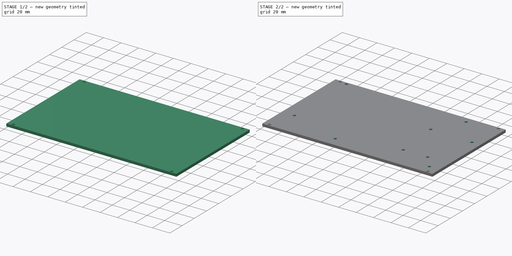
[diagram: build sequence overview — one tinted view per stage of 2, left to right]
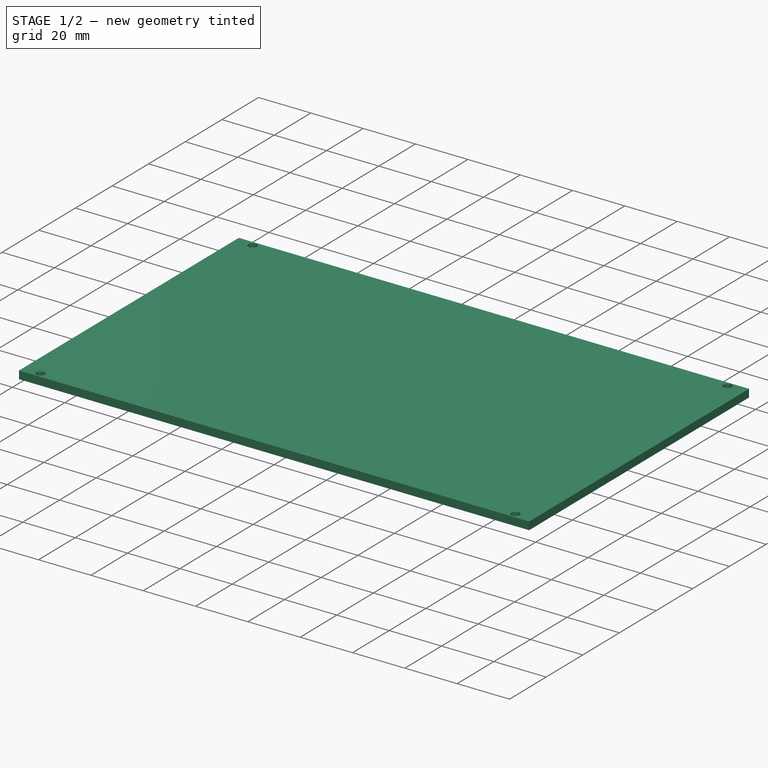
[diagram: stage 1 of 2 — iso view after this stage's code; geometry added in this stage tinted green]
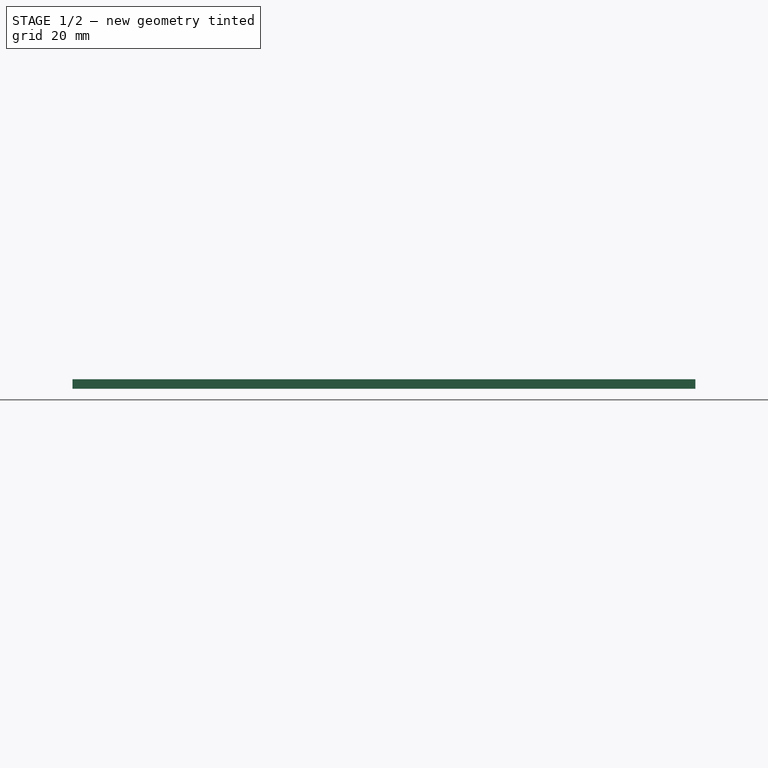
[diagram: stage 1 of 2 — front view after this stage's code; geometry added in this stage tinted green]
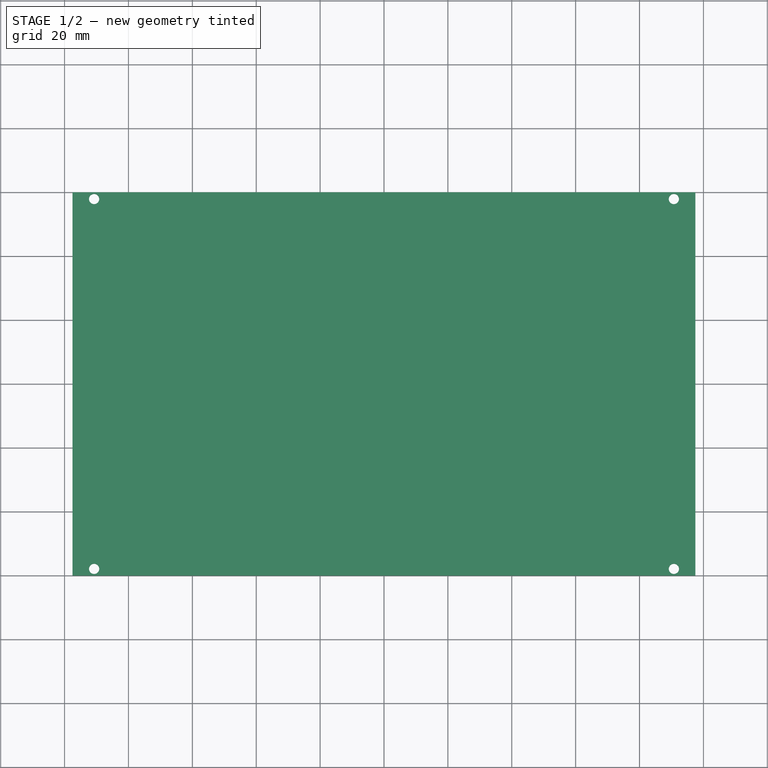
[diagram: stage 1 of 2 — top view after this stage's code; geometry added in this stage tinted green]
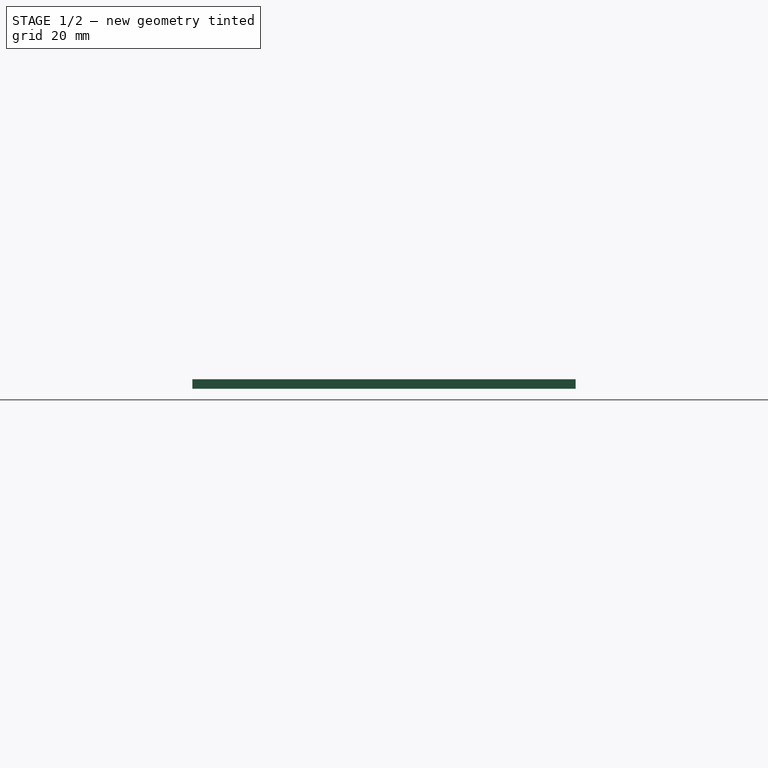
[diagram: stage 1 of 2 — right view after this stage's code; geometry added in this stage tinted green]
FCSTD DOCUMENT
Label: controls-mounting-plate
objects: Sketcher::SketchObject×3, PartDesign::Pocket×2, PartDesign::Pad×1
note: 9 computed .brp shape members not serialized (recipe doc carries the construction recipe); baked Part::Feature solids carry a one-line shape summary decoded from their .brp

FEATURE [Sketcher::SketchObject] Sketch
  sketch-geometry (4):
    g0: LineSegment StartX=-97.5 StartY=60 StartZ=0 EndX=97.5 EndY=60 EndZ=0
    g1: LineSegment StartX=97.5 StartY=60 StartZ=0 EndX=97.5 EndY=-60 EndZ=0
    g2: LineSegment StartX=97.5 StartY=-60 StartZ=0 EndX=-97.5 EndY=-60 EndZ=0
    g3: LineSegment StartX=-97.5 StartY=-60 StartZ=0 EndX=-97.5 EndY=60 EndZ=0
  constraints (12):
    c: Coincident(g0,g1)
    c: Coincident(g1,g2)
    c: Coincident(g2,g3)
    c: Coincident(g3,g0)
    c: Horizontal(g0)
    c: Horizontal(g2)
    c: Vertical(g1)
    c: Vertical(g3)
    c: Symmetric(g0,g2,g-1)
    c: Symmetric(g0,g0,g-2)
    c: DistanceX(g0) = 195
    c: DistanceY(g1) = -120
FEATURE [PartDesign::Pad] Pad
  Length = 3
  Length2 = 100
  Sketch = -> Sketch
  Type = 0
FEATURE [Sketcher::SketchObject] Sketch001
  Placement = pos=(0,0,3) rot=(0,0,1;0rad)
  Support = -> Pad [Face6]
  sketch-geometry (4):
    g0: Circle CenterX=-90.75 CenterY=57.9 CenterZ=0 NormalX=0 NormalY=0 NormalZ=1 Radius=1.6
    g1: Circle CenterX=90.75 CenterY=57.9 CenterZ=0 NormalX=0 NormalY=0 NormalZ=1 Radius=1.6
    g2: Circle CenterX=-90.75 CenterY=-57.9 CenterZ=0 NormalX=0 NormalY=0 NormalZ=1 Radius=1.6
    g3: Circle CenterX=90.75 CenterY=-57.9 CenterZ=0 NormalX=0 NormalY=0 NormalZ=1 Radius=1.6
  constraints (9):
    c: Equal(g0,g2)
    c: Equal(g2,g3)
    c: Equal(g3,g1)
    c: Radius(g1) = 1.6
    c: Symmetric(g0,g1,g-2)
    c: Symmetric(g0,g2,g-1)
    c: Symmetric(g3,g1,g-1)
    c: DistanceX(g0,g1) = 181.5
    c: DistanceY(g0,g2) = -115.8
FEATURE [PartDesign::Pocket] Pocket
  Length = 5
  Sketch = -> Sketch001
  Type = 0
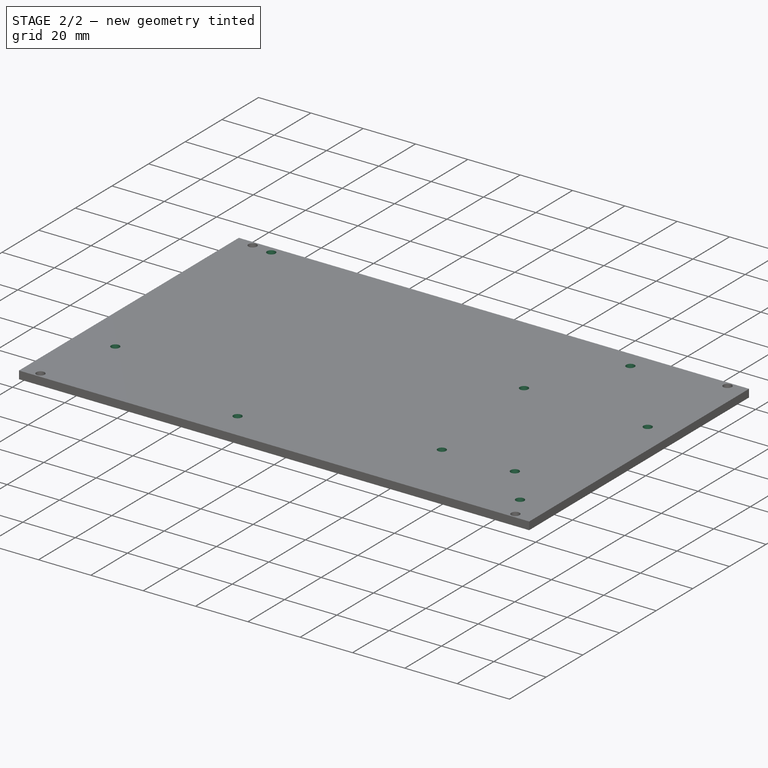
[diagram: stage 2 of 2 — iso view after this stage's code; geometry added in this stage tinted green]
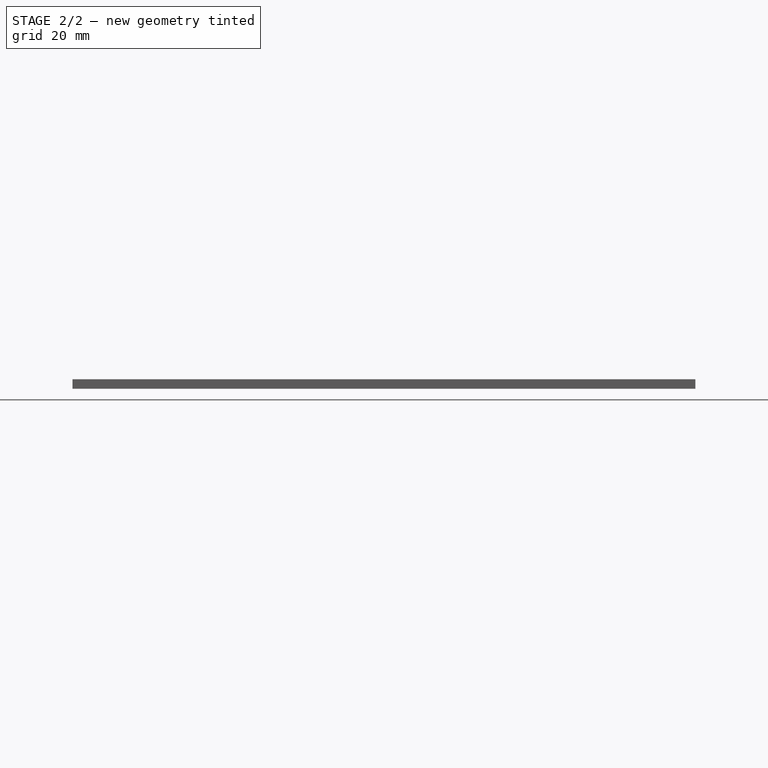
[diagram: stage 2 of 2 — front view after this stage's code; geometry added in this stage tinted green]
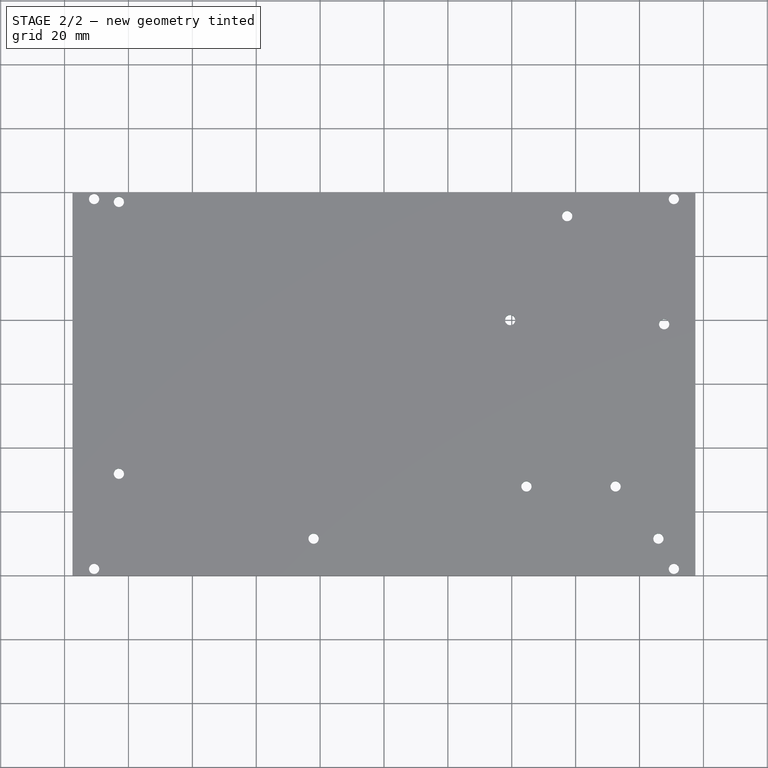
[diagram: stage 2 of 2 — top view after this stage's code; geometry added in this stage tinted green]
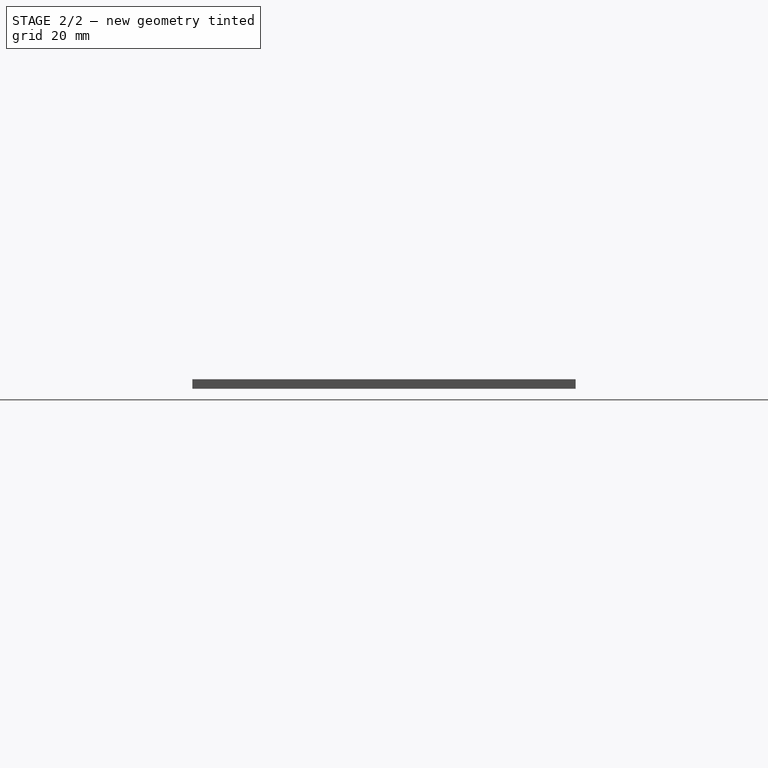
[diagram: stage 2 of 2 — right view after this stage's code; geometry added in this stage tinted green]
FEATURE [Sketcher::SketchObject] Sketch002
  Placement = pos=(0,0,3) rot=(0,0,1;0rad)
  Support = -> Pocket [Face5]
  sketch-geometry (10):
    g0: Circle CenterX=-83 CenterY=57 CenterZ=0 NormalX=0 NormalY=0 NormalZ=1 Radius=1.6
    g1: Circle CenterX=57.355 CenterY=52.555 CenterZ=0 NormalX=0 NormalY=0 NormalZ=1 Radius=1.6
    g2: Circle CenterX=-83 CenterY=-28.123 CenterZ=0 NormalX=0 NormalY=0 NormalZ=1 Radius=1.6
    g3: Circle CenterX=-22.04 CenterY=-48.443 CenterZ=0 NormalX=0 NormalY=0 NormalZ=1 Radius=1.6
    g4: Circle CenterX=85.91 CenterY=-48.443 CenterZ=0 NormalX=0 NormalY=0 NormalZ=1 Radius=1.6
    g5: LineSegment [constr] StartX=37 StartY=50 StartZ=0 EndX=37 EndY=-50 EndZ=0
    g6: Circle CenterX=39.5 CenterY=20 CenterZ=0 NormalX=0 NormalY=0 NormalZ=1 Radius=1.6
    g7: Circle CenterX=44.6 CenterY=-32.1 CenterZ=0 NormalX=0 NormalY=0 NormalZ=1 Radius=1.6
    g8: Circle CenterX=72.5 CenterY=-32.1 CenterZ=0 NormalX=0 NormalY=0 NormalZ=1 Radius=1.6
    g9: Circle CenterX=87.7 CenterY=18.7 CenterZ=0 NormalX=0 NormalY=0 NormalZ=1 Radius=1.6
  constraints (31):
    c: Radius(g0) = 1.6
    c: DistanceY(g-1,g0) = 57
    c: DistanceX(g-1,g0) = -83
    c: Equal(g2,g0)
    c: Equal(g0,g3)
    c: Equal(g3,g4)
    c: Equal(g4,g1)
    c: DistanceX(g0,g1) = 140.355
    c: DistanceY(g0,g1) = -4.445
    c: DistanceY(g0,g2) = -85.123
    c: DistanceX(g2,g0) = 0
    c: DistanceY(g3,g4) = 0
    c: DistanceY(g3,g2) = 20.32
    c: DistanceX(g3,g2) = -60.96
    c: DistanceX(g3,g4) = 107.95
    c: Vertical(g5)
    c: Symmetric(g5,g5,g-1)
    c: DistanceY(g5) = -100
    c: DistanceX(g5,g0) = -120
    c: Equal(g6,g7)
    c: Equal(g7,g8)
    c: Equal(g8,g9)
    c: Equal(g9,g4)
    c: DistanceX(g6,g5) = -2.5
    c: DistanceY(g-1,g6) = 20
    c: DistanceX(g6,g9) = 48.2
    c: DistanceY(g6,g9) = -1.3
    c: DistanceY(g7,g8) = 0
    c: DistanceX(g7,g8) = 27.9
    c: DistanceY(g8,g9) = 50.8
    c: DistanceX(g7,g6) = -5.1
FEATURE [PartDesign::Pocket] Pocket001
  Length = 5
  Sketch = -> Sketch002
  Type = 0
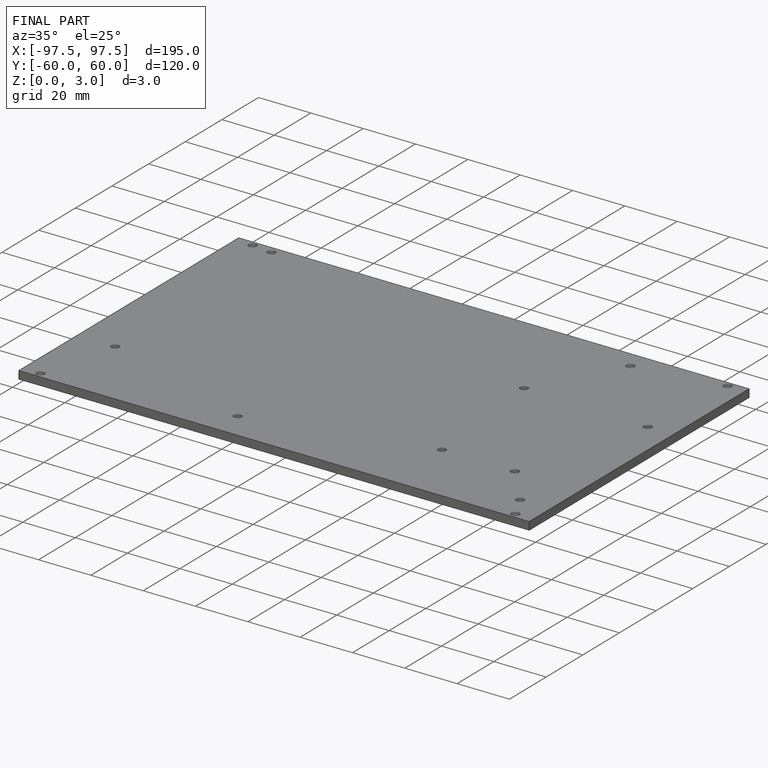
[diagram: finished part — iso view with bounding-box wireframe]
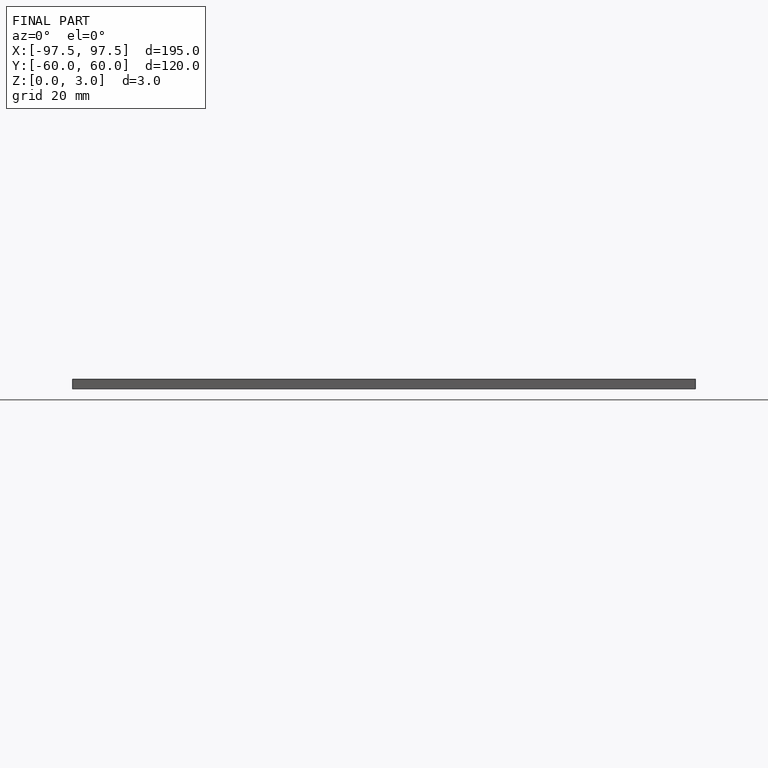
[diagram: finished part — front view with bounding-box wireframe]
